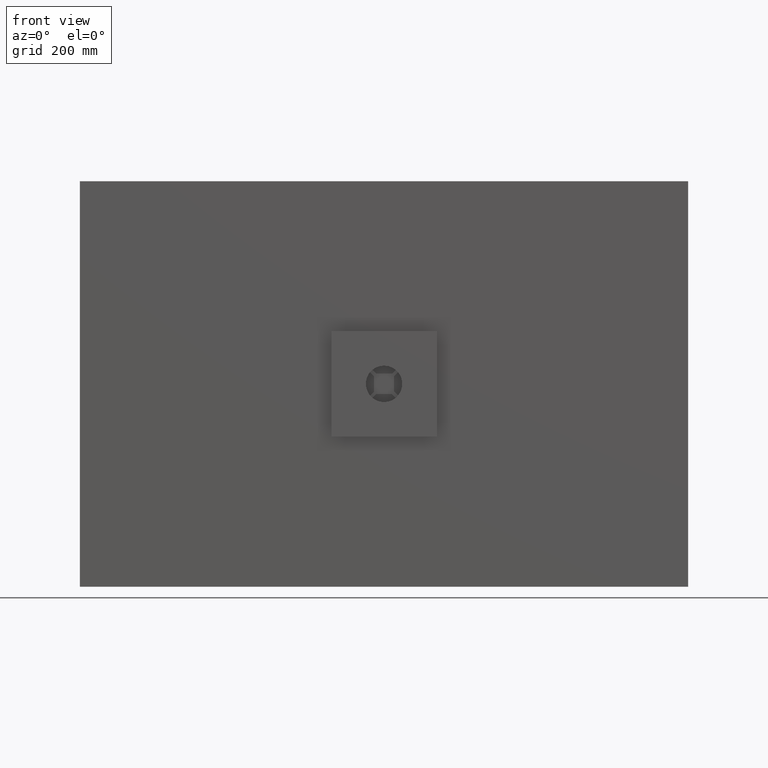
[diagram: clean part render]
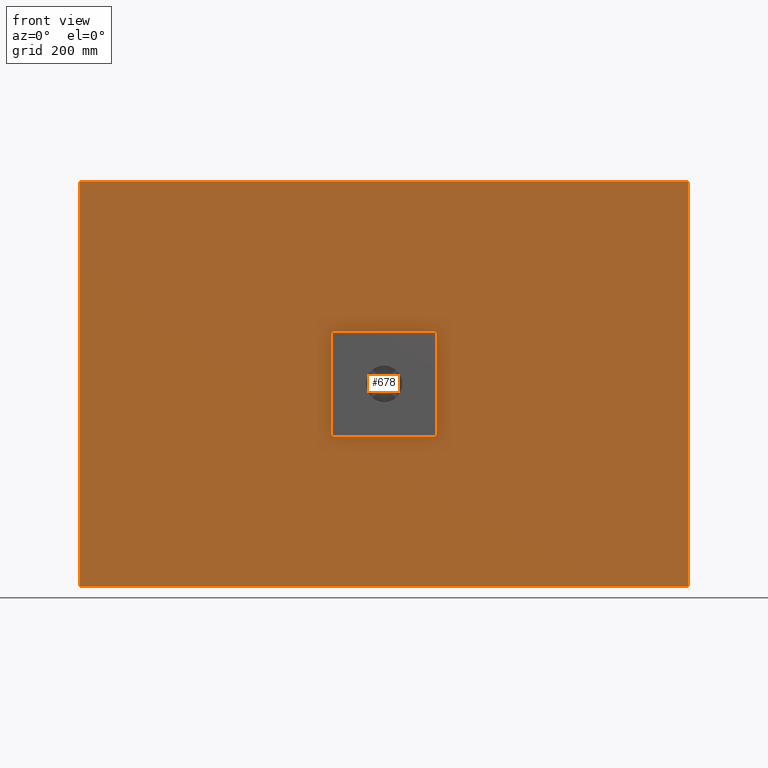
[diagram: same view with one face highlighted and labeled with its STEP entity id]
A machine part, front view. The second image highlights one B-rep face of the part: STEP entity #678.
In plain terms, the highlighted planar face has unit normal (0, 1, 0).
Its self-contained STEP definition (entity closure, byte-faithful):
#11 = LINE ( 'NONE', #914, #2527 ) ;
#86 = VERTEX_POINT ( 'NONE', #598 ) ;
#213 = CIRCLE ( 'NONE', #2058, 2.499999999999988500 ) ;
#241 = CARTESIAN_POINT ( 'NONE',  ( 77.49999999999984400, 0.0000000000000000000, 80.00000000000009900 ) ) ;
#261 = ORIENTED_EDGE ( 'NONE', *, *, #3134, .T. ) ;
#273 = CARTESIAN_POINT ( 'NONE',  ( 79.99999999999981500, 0.0000000000000000000, -77.49999999999997200 ) ) ;
#303 = ORIENTED_EDGE ( 'NONE', *, *, #1185, .T. ) ;
#328 = EDGE_CURVE ( 'NONE', #2297, #661, #2662, .T. ) ;
#352 = LINE ( 'NONE', #917, #3152 ) ;
#391 = ORIENTED_EDGE ( 'NONE', *, *, #1862, .F. ) ;
#412 = DIRECTION ( 'NONE',  ( 0.0000000000000000000, -0.0000000000000000000, 1.000000000000000000 ) ) ;
#436 = VERTEX_POINT ( 'NONE', #1869 ) ;
#438 = CARTESIAN_POINT ( 'NONE',  ( 77.49999999999984400, 0.0000000000000000000, -79.99999999999997200 ) ) ;
#453 = CARTESIAN_POINT ( 'NONE',  ( 750.0000000000000000, 0.0000000000000000000, -500.0000000000000000 ) ) ;
#471 = LINE ( 'NONE', #2388, #612 ) ;
#598 = CARTESIAN_POINT ( 'NONE',  ( -77.50000000000018500, 0.0000000000000000000, 80.00000000000011400 ) ) ;
#612 = VECTOR ( 'NONE', #2316, 1000.000000000000000 ) ;
#651 = VERTEX_POINT ( 'NONE', #931 ) ;
#661 = VERTEX_POINT ( 'NONE', #2741 ) ;
#667 = VERTEX_POINT ( 'NONE', #453 ) ;
#678 = ADVANCED_FACE ( 'NONE', ( #1858, #1820 ), #2664, .F. ) ;
#698 = ORIENTED_EDGE ( 'NONE', *, *, #328, .T. ) ;
#795 = LINE ( 'NONE', #2361, #2493 ) ;
#829 = ORIENTED_EDGE ( 'NONE', *, *, #2936, .F. ) ;
#862 = DIRECTION ( 'NONE',  ( 0.0000000000000000000, 0.0000000000000000000, 1.000000000000000000 ) ) ;
#865 = DIRECTION ( 'NONE',  ( 0.0000000000000000000, 1.000000000000000000, 0.0000000000000000000 ) ) ;
#870 = CARTESIAN_POINT ( 'NONE',  ( 77.49999999999985800, 0.0000000000000000000, 77.50000000000011400 ) ) ;
#900 = EDGE_CURVE ( 'NONE', #1933, #2177, #213, .T. ) ;
#914 = CARTESIAN_POINT ( 'NONE',  ( -80.00000000000017100, 0.0000000000000000000, -77.49999999999994300 ) ) ;
#917 = CARTESIAN_POINT ( 'NONE',  ( -77.50000000000018500, 0.0000000000000000000, 80.00000000000011400 ) ) ;
#931 = CARTESIAN_POINT ( 'NONE',  ( 79.99999999999984400, 0.0000000000000000000, 77.50000000000011400 ) ) ;
#947 = CARTESIAN_POINT ( 'NONE',  ( -749.9999999999998900, 0.0000000000000000000, 500.0000000000000000 ) ) ;
#953 = EDGE_CURVE ( 'NONE', #436, #86, #3098, .T. ) ;
#1060 = CARTESIAN_POINT ( 'NONE',  ( -750.0000000000000000, 0.0000000000000000000, -500.0000000000000000 ) ) ;
#1138 = EDGE_CURVE ( 'NONE', #2177, #2297, #2384, .T. ) ;
#1153 = CARTESIAN_POINT ( 'NONE',  ( -749.9999999999998900, 0.0000000000000000000, 500.0000000000000000 ) ) ;
#1155 = DIRECTION ( 'NONE',  ( 0.0000000000000000000, 0.0000000000000000000, -1.000000000000000000 ) ) ;
#1180 = AXIS2_PLACEMENT_3D ( 'NONE', #947, #2731, #412 ) ;
#1185 = EDGE_CURVE ( 'NONE', #651, #1933, #1772, .T. ) ;
#1257 = DIRECTION ( 'NONE',  ( 0.0000000000000000000, 1.000000000000000000, -0.0000000000000000000 ) ) ;
#1329 = DIRECTION ( 'NONE',  ( 1.000000000000000000, 0.0000000000000000000, -8.953411488912551000E-017 ) ) ;
#1331 = CARTESIAN_POINT ( 'NONE',  ( 77.49999999999982900, 0.0000000000000000000, -77.49999999999997200 ) ) ;
#1350 = ORIENTED_EDGE ( 'NONE', *, *, #953, .T. ) ;
#1381 = DIRECTION ( 'NONE',  ( -1.790682297782509900E-016, 0.0000000000000000000, 1.000000000000000000 ) ) ;
#1392 = ORIENTED_EDGE ( 'NONE', *, *, #2550, .T. ) ;
#1420 = CARTESIAN_POINT ( 'NONE',  ( -77.50000000000018500, 0.0000000000000000000, -77.49999999999994300 ) ) ;
#1449 = VERTEX_POINT ( 'NONE', #241 ) ;
#1485 = VECTOR ( 'NONE', #1570, 1000.000000000000000 ) ;
#1494 = EDGE_LOOP ( 'NONE', ( #1724, #261, #303, #1790, #3284, #698, #1392, #1350 ) ) ;
#1525 = VERTEX_POINT ( 'NONE', #2653 ) ;
#1526 = EDGE_LOOP ( 'NONE', ( #391, #2577, #3018, #829 ) ) ;
#1553 = AXIS2_PLACEMENT_3D ( 'NONE', #870, #865, #862 ) ;
#1558 = DIRECTION ( 'NONE',  ( -1.000000000000000000, -0.0000000000000000000, -0.0000000000000000000 ) ) ;
#1570 = DIRECTION ( 'NONE',  ( 1.110223024625156500E-016, 0.0000000000000000000, 1.000000000000000000 ) ) ;
#1612 = CARTESIAN_POINT ( 'NONE',  ( -77.50000000000018500, 0.0000000000000000000, 77.50000000000011400 ) ) ;
#1684 = CARTESIAN_POINT ( 'NONE',  ( 79.99999999999985800, 0.0000000000000000000, -77.49999999999995700 ) ) ;
#1724 = ORIENTED_EDGE ( 'NONE', *, *, #1951, .T. ) ;
#1754 = VECTOR ( 'NONE', #2905, 1000.000000000000000 ) ;
#1758 = VERTEX_POINT ( 'NONE', #1153 ) ;
#1772 = LINE ( 'NONE', #273, #1754 ) ;
#1790 = ORIENTED_EDGE ( 'NONE', *, *, #900, .T. ) ;
#1820 = FACE_OUTER_BOUND ( 'NONE', #1526, .T. ) ;
#1858 = FACE_BOUND ( 'NONE', #1494, .T. ) ;
#1862 = EDGE_CURVE ( 'NONE', #2052, #1758, #2792, .T. ) ;
#1869 = CARTESIAN_POINT ( 'NONE',  ( -80.00000000000018500, 0.0000000000000000000, 77.50000000000011400 ) ) ;
#1888 = VECTOR ( 'NONE', #2532, 1000.000000000000000 ) ;
#1933 = VERTEX_POINT ( 'NONE', #1684 ) ;
#1951 = EDGE_CURVE ( 'NONE', #86, #1449, #352, .T. ) ;
#1982 = DIRECTION ( 'NONE',  ( -1.000000000000000000, -0.0000000000000000000, 2.686023446673765400E-016 ) ) ;
#2017 = AXIS2_PLACEMENT_3D ( 'NONE', #1612, #2421, #2389 ) ;
#2049 = EDGE_CURVE ( 'NONE', #667, #2052, #795, .T. ) ;
#2052 = VERTEX_POINT ( 'NONE', #3209 ) ;
#2058 = AXIS2_PLACEMENT_3D ( 'NONE', #1331, #1257, #1155 ) ;
#2139 = CIRCLE ( 'NONE', #1553, 2.499999999999988500 ) ;
#2177 = VERTEX_POINT ( 'NONE', #438 ) ;
#2238 = VECTOR ( 'NONE', #1982, 1000.000000000000000 ) ;
#2297 = VERTEX_POINT ( 'NONE', #3008 ) ;
#2316 = DIRECTION ( 'NONE',  ( -3.330669073875469600E-016, -0.0000000000000000000, -1.000000000000000000 ) ) ;
#2361 = CARTESIAN_POINT ( 'NONE',  ( -750.0000000000000000, 0.0000000000000000000, -500.0000000000000000 ) ) ;
#2377 = CARTESIAN_POINT ( 'NONE',  ( -77.50000000000018500, 0.0000000000000000000, -79.99999999999992900 ) ) ;
#2384 = LINE ( 'NONE', #2377, #2238 ) ;
#2388 = CARTESIAN_POINT ( 'NONE',  ( 750.0000000000000000, 0.0000000000000000000, -500.0000000000000000 ) ) ;
#2389 = DIRECTION ( 'NONE',  ( 0.0000000000000000000, 0.0000000000000000000, 1.000000000000000000 ) ) ;
#2421 = DIRECTION ( 'NONE',  ( 0.0000000000000000000, 1.000000000000000000, 0.0000000000000000000 ) ) ;
#2463 = CARTESIAN_POINT ( 'NONE',  ( -749.9999999999998900, 0.0000000000000000000, 500.0000000000000000 ) ) ;
#2493 = VECTOR ( 'NONE', #1558, 1000.000000000000000 ) ;
#2527 = VECTOR ( 'NONE', #1381, 1000.000000000000000 ) ;
#2532 = DIRECTION ( 'NONE',  ( 1.000000000000000000, 0.0000000000000000000, 0.0000000000000000000 ) ) ;
#2550 = EDGE_CURVE ( 'NONE', #661, #436, #11, .T. ) ;
#2577 = ORIENTED_EDGE ( 'NONE', *, *, #2049, .F. ) ;
#2653 = CARTESIAN_POINT ( 'NONE',  ( 750.0000000000003400, 0.0000000000000000000, 500.0000000000000000 ) ) ;
#2662 = CIRCLE ( 'NONE', #3041, 2.499999999999988500 ) ;
#2664 = PLANE ( 'NONE',  #1180 ) ;
#2704 = DIRECTION ( 'NONE',  ( 0.0000000000000000000, 1.000000000000000000, 0.0000000000000000000 ) ) ;
#2731 = DIRECTION ( 'NONE',  ( 0.0000000000000000000, 1.000000000000000000, 0.0000000000000000000 ) ) ;
#2741 = CARTESIAN_POINT ( 'NONE',  ( -80.00000000000017100, 0.0000000000000000000, -77.49999999999994300 ) ) ;
#2792 = LINE ( 'NONE', #1060, #1485 ) ;
#2844 = DIRECTION ( 'NONE',  ( 0.0000000000000000000, 0.0000000000000000000, 1.000000000000000000 ) ) ;
#2905 = DIRECTION ( 'NONE',  ( -1.790682297782509700E-016, -0.0000000000000000000, -1.000000000000000000 ) ) ;
#2936 = EDGE_CURVE ( 'NONE', #1758, #1525, #3032, .T. ) ;
#2967 = EDGE_CURVE ( 'NONE', #1525, #667, #471, .T. ) ;
#3008 = CARTESIAN_POINT ( 'NONE',  ( -77.50000000000018500, 0.0000000000000000000, -79.99999999999992900 ) ) ;
#3018 = ORIENTED_EDGE ( 'NONE', *, *, #2967, .F. ) ;
#3032 = LINE ( 'NONE', #2463, #1888 ) ;
#3041 = AXIS2_PLACEMENT_3D ( 'NONE', #1420, #2704, #2844 ) ;
#3098 = CIRCLE ( 'NONE', #2017, 2.500000000000016000 ) ;
#3134 = EDGE_CURVE ( 'NONE', #1449, #651, #2139, .T. ) ;
#3152 = VECTOR ( 'NONE', #1329, 1000.000000000000000 ) ;
#3209 = CARTESIAN_POINT ( 'NONE',  ( -750.0000000000000000, 0.0000000000000000000, -500.0000000000000000 ) ) ;
#3284 = ORIENTED_EDGE ( 'NONE', *, *, #1138, .T. ) ;